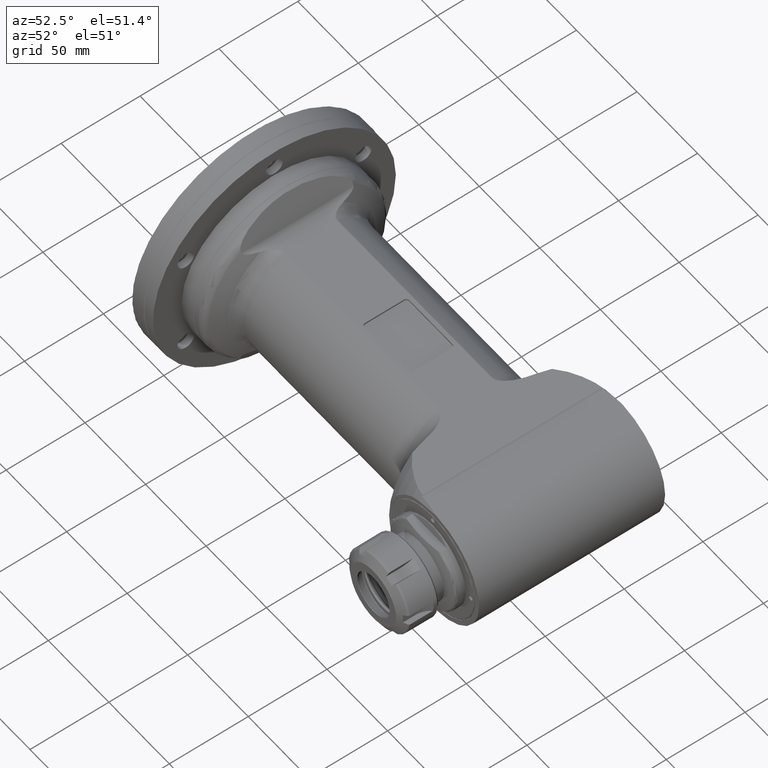
[diagram: clean part render]
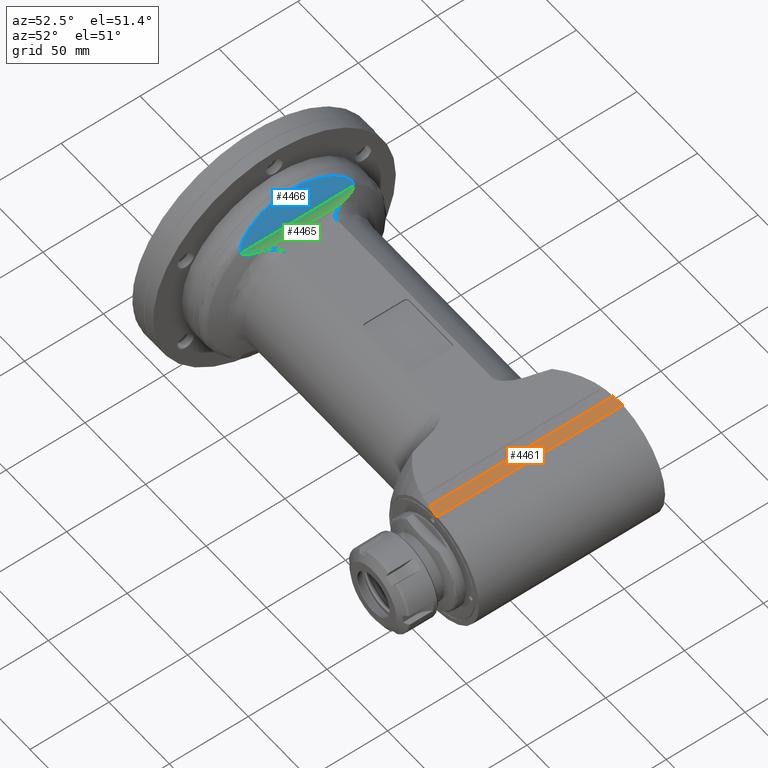
[diagram: same view with three faces highlighted in distinct colors, each labeled with its STEP entity id]
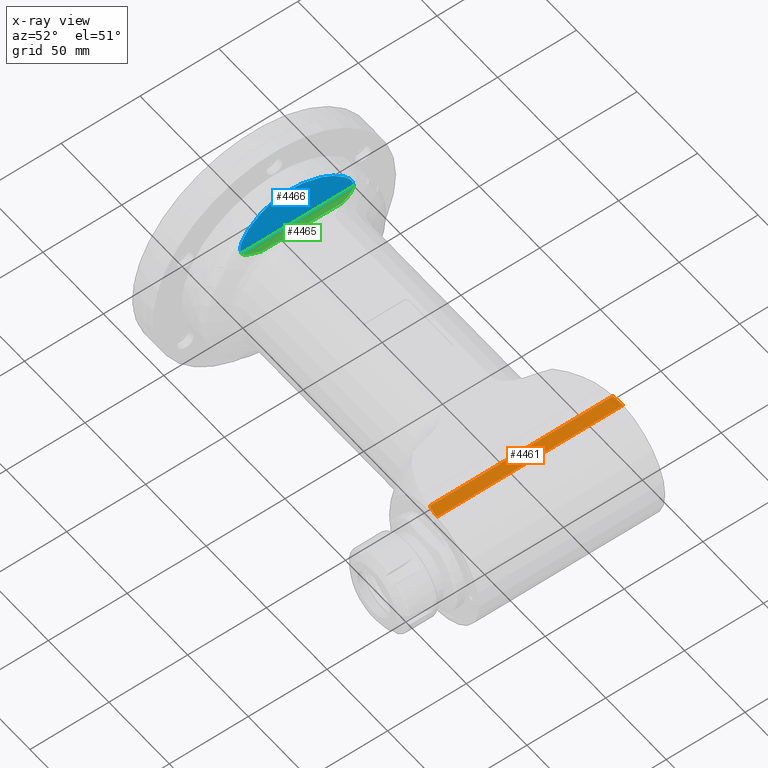
[diagram: x-ray of the same camera — body ghosted, the three highlighted faces saturated]
A machine part, auxiliary view with three faces highlighted in distinct colors.
The next image is the same camera in x-ray (body ghosted, the three faces saturated) — at least one of them is partly hidden behind the body in this view.
Their STEP definitions:

[orange] entity #4461 — the highlighted planar face has unit normal (-0.0872, 0, -0.9962).
#249=(
BOUNDED_CURVE()
B_SPLINE_CURVE(2,(#6775,#6776,#6777),.UNSPECIFIED.,.F.,.F.)
B_SPLINE_CURVE_WITH_KNOTS((3,3),(0.235865116005594,0.841052479975455),
 .UNSPECIFIED.)
CURVE()
GEOMETRIC_REPRESENTATION_ITEM()
RATIONAL_B_SPLINE_CURVE((1.,1.,1.))
REPRESENTATION_ITEM('')
);
#250=(
BOUNDED_CURVE()
B_SPLINE_CURVE(2,(#6784,#6785,#6786),.UNSPECIFIED.,.F.,.F.)
B_SPLINE_CURVE_WITH_KNOTS((3,3),(0.855208840996686,1.46039620495802),
 .UNSPECIFIED.)
CURVE()
GEOMETRIC_REPRESENTATION_ITEM()
RATIONAL_B_SPLINE_CURVE((1.,1.,1.))
REPRESENTATION_ITEM('')
);
#398=FACE_OUTER_BOUND('',#686,.T.);
#686=EDGE_LOOP('',(#2976,#2977,#2978,#2979,#2980,#2981));
#1319=LINE('',#6760,#1577);
#1320=LINE('',#6779,#1578);
#1321=LINE('',#6781,#1579);
#1322=LINE('',#6783,#1580);
#1577=VECTOR('',#5368,116.0592061434);
#1578=VECTOR('',#5371,10.);
#1579=VECTOR('',#5372,118.);
#1580=VECTOR('',#5373,10.);
#1839=VERTEX_POINT('',#6758);
#1840=VERTEX_POINT('',#6759);
#1841=VERTEX_POINT('',#6774);
#1842=VERTEX_POINT('',#6778);
#1843=VERTEX_POINT('',#6780);
#1844=VERTEX_POINT('',#6782);
#2291=EDGE_CURVE('',#1839,#1840,#1319,.T.);
#2294=EDGE_CURVE('',#1841,#1840,#249,.T.);
#2295=EDGE_CURVE('',#1842,#1841,#1320,.T.);
#2296=EDGE_CURVE('',#1843,#1842,#1321,.T.);
#2297=EDGE_CURVE('',#1844,#1843,#1322,.T.);
#2298=EDGE_CURVE('',#1839,#1844,#250,.T.);
#2976=ORIENTED_EDGE('',*,*,#2291,.T.);
#2977=ORIENTED_EDGE('',*,*,#2294,.F.);
#2978=ORIENTED_EDGE('',*,*,#2295,.F.);
#2979=ORIENTED_EDGE('',*,*,#2296,.F.);
#2980=ORIENTED_EDGE('',*,*,#2297,.F.);
#2981=ORIENTED_EDGE('',*,*,#2298,.F.);
#4330=PLANE('',#4791);
#4461=ADVANCED_FACE('',(#398),#4330,.F.);
#4791=AXIS2_PLACEMENT_3D('',#6773,#5369,#5370);
#5368=DIRECTION('',(-5.854472001257E-13,-1.,0.));
#5369=DIRECTION('center_axis',(-0.087155742747664,0.,-0.996194698091745));
#5370=DIRECTION('ref_axis',(-0.996194698091745,0.,0.087155742747664));
#5371=DIRECTION('',(-0.996194698091745,0.,0.0871557427476639));
#5372=DIRECTION('',(0.,-1.,0.));
#5373=DIRECTION('',(0.996194698091745,0.,-0.0871557427476639));
#6758=CARTESIAN_POINT('',(-3.555910320861,58.02960307171,38.5));
#6759=CARTESIAN_POINT('',(-3.555910320929,-58.02960307172,38.5));
#6760=CARTESIAN_POINT('',(-3.555910320861,58.02960307171,38.5));
#6773=CARTESIAN_POINT('Origin',(-9.270936472238,-59.,39.));
#6774=CARTESIAN_POINT('',(2.44584510330669,-59.0000000009241,37.9749144391303));
#6775=CARTESIAN_POINT('Ctrl Pts',(2.44584510316394,-59.0000000018369,37.9749144391429));
#6776=CARTESIAN_POINT('Ctrl Pts',(-0.579915565356645,-58.5148015367713,
38.239634196181));
#6777=CARTESIAN_POINT('Ctrl Pts',(-3.55591032092792,-58.0296030717059,38.5000000000061));
#6778=CARTESIAN_POINT('',(3.81191822441,-59.,37.85539852749));
#6779=CARTESIAN_POINT('',(-33.6506550533048,-59.,41.1329489957958));
#6780=CARTESIAN_POINT('',(3.81191822441,59.,37.85539852749));
#6781=CARTESIAN_POINT('',(3.81191822441,59.,37.85539852749));
#6782=CARTESIAN_POINT('',(2.44584510329297,59.0000000009242,37.9749144391316));
#6783=CARTESIAN_POINT('',(-74.3381319615015,59.,44.6926419727361));
#6784=CARTESIAN_POINT('Ctrl Pts',(-3.55591032086412,58.0296030717186,38.5000000000006));
#6785=CARTESIAN_POINT('Ctrl Pts',(-0.57991556533407,58.5148015367772,38.2396341961791));
#6786=CARTESIAN_POINT('Ctrl Pts',(2.44584510315022,59.000000001837,37.974914439144));

[blue] entity #4466 — the highlighted planar face has unit normal (-0.9397, 0, -0.342).
#359=B_SPLINE_CURVE_WITH_KNOTS('',3,(#6971,#6972,#6973,#6974,#6975,#6976,
#6977,#6978,#6979,#6980,#6981,#6982,#6983,#6984,#6985,#6986,#6987,#6988),
 .UNSPECIFIED.,.F.,.F.,(4,2,2,2,2,2,2,2,4),(1.83524515230335,1.94782364696368,
2.30536823861081,2.66291283025793,3.05831877706774,3.45372472387754,3.75401914312324,
3.89268274483142,3.90047097227725),.UNSPECIFIED.);
#360=B_SPLINE_CURVE_WITH_KNOTS('',3,(#6992,#6993,#6994,#6995,#6996,#6997,
#6998,#6999,#7000,#7001,#7002,#7003,#7004,#7005,#7006,#7007,#7008,#7009),
 .UNSPECIFIED.,.F.,.F.,(4,2,2,2,2,2,2,2,4),(10.9879278441443,10.9957160715902,
11.1343796732984,11.4346740925441,11.8300800393539,12.2254859861637,12.5830305778108,
12.9405751694579,13.0531536641182),.UNSPECIFIED.);
#403=FACE_OUTER_BOUND('',#692,.T.);
#692=EDGE_LOOP('',(#3024,#3025,#3026,#3027,#3028,#3029));
#1043=ELLIPSE('',#4804,62.7864885760796,59.);
#1068=CIRCLE('',#4803,103.132249013614);
#1069=CIRCLE('',#4805,103.132248953429);
#1330=LINE('',#6924,#1588);
#1588=VECTOR('',#5401,71.17507101838);
#1871=VERTEX_POINT('',#6922);
#1872=VERTEX_POINT('',#6923);
#1875=VERTEX_POINT('',#6968);
#1876=VERTEX_POINT('',#6970);
#1877=VERTEX_POINT('',#6989);
#1878=VERTEX_POINT('',#6991);
#2328=EDGE_CURVE('',#1871,#1872,#1330,.T.);
#2333=EDGE_CURVE('',#1871,#1875,#1068,.T.);
#2334=EDGE_CURVE('',#1876,#1875,#359,.T.);
#2335=EDGE_CURVE('',#1876,#1877,#1043,.T.);
#2336=EDGE_CURVE('',#1878,#1877,#360,.T.);
#2337=EDGE_CURVE('',#1878,#1872,#1069,.T.);
#3024=ORIENTED_EDGE('',*,*,#2328,.F.);
#3025=ORIENTED_EDGE('',*,*,#2333,.T.);
#3026=ORIENTED_EDGE('',*,*,#2334,.F.);
#3027=ORIENTED_EDGE('',*,*,#2335,.T.);
#3028=ORIENTED_EDGE('',*,*,#2336,.F.);
#3029=ORIENTED_EDGE('',*,*,#2337,.T.);
#4332=PLANE('',#4802);
#4466=ADVANCED_FACE('',(#403),#4332,.F.);
#4802=AXIS2_PLACEMENT_3D('',#6967,#5402,#5403);
#4803=AXIS2_PLACEMENT_3D('',#6969,#5404,#5405);
#4804=AXIS2_PLACEMENT_3D('',#6990,#5406,#5407);
#4805=AXIS2_PLACEMENT_3D('',#7010,#5408,#5409);
#5401=DIRECTION('',(1.717080837463E-14,-1.,-4.751921387398E-14));
#5402=DIRECTION('center_axis',(-0.939692620785897,0.,-0.342020143325699));
#5403=DIRECTION('ref_axis',(0.,1.,0.));
#5404=DIRECTION('center_axis',(0.939692620798117,1.44499664308184E-9,0.342020143292126));
#5405=DIRECTION('ref_axis',(0.00401260073821672,0.99993117697277,-0.0110245341473586));
#5406=DIRECTION('center_axis',(0.939692620785897,0.,0.342020143325699));
#5407=DIRECTION('ref_axis',(0.342020143325699,0.,-0.939692620785897));
#5408=DIRECTION('center_axis',(0.939692620783974,-1.44062297885424E-9,0.342020143330985));
#5409=DIRECTION('ref_axis',(0.0100879466532356,-0.999564922332435,-0.027716409848207));
#6922=CARTESIAN_POINT('',(-188.5272482822,35.58753550919,41.6319194267));
#6923=CARTESIAN_POINT('',(-188.5272482822,-35.58753550919,41.6319194267));
#6924=CARTESIAN_POINT('',(-188.5272482822,35.58753550919,41.6319194267));
#6967=CARTESIAN_POINT('Origin',(-187.5693079519,0.,39.));
#6968=CARTESIAN_POINT('',(-189.1538123689,35.62530817393,43.35339010656));
#6969=CARTESIAN_POINT('Origin',(-189.567640907826,-67.4998429660819,44.4903751088245));
#6970=CARTESIAN_POINT('',(-193.685351304,19.15588865251,55.80369100635));
#6971=CARTESIAN_POINT('Ctrl Pts',(-193.68535130402,19.1558886525135,55.8036910063528));
#6972=CARTESIAN_POINT('Ctrl Pts',(-193.64044549824,19.5153045203275,55.6803133189701));
#6973=CARTESIAN_POINT('Ctrl Pts',(-193.594493744902,19.8699111503599,55.5540619142909));
#6974=CARTESIAN_POINT('Ctrl Pts',(-193.398710276412,21.3286952802156,55.0161512555124));
#6975=CARTESIAN_POINT('Ctrl Pts',(-193.219926290946,22.5303004937655,54.5249462924839));
#6976=CARTESIAN_POINT('Ctrl Pts',(-192.823756779127,24.8771513669423,53.4364795044851));
#6977=CARTESIAN_POINT('Ctrl Pts',(-192.606164106202,26.0220980476712,52.8386485489852));
#6978=CARTESIAN_POINT('Ctrl Pts',(-192.154604481032,28.1566130198652,51.5979986752934));
#6979=CARTESIAN_POINT('Ctrl Pts',(-191.872983367648,29.348370158103,50.8242510254272));
#6980=CARTESIAN_POINT('Ctrl Pts',(-191.251910645058,31.587567143657,49.1178677442722));
#6981=CARTESIAN_POINT('Ctrl Pts',(-190.912529703587,32.6351745421485,48.1854262709895));
#6982=CARTESIAN_POINT('Ctrl Pts',(-190.309513546922,34.1415743870005,46.5286529969866));
#6983=CARTESIAN_POINT('Ctrl Pts',(-189.976625518735,34.8455033115687,45.6140506563339));
#6984=CARTESIAN_POINT('Ctrl Pts',(-189.519380846223,35.4401876032742,44.3577812434424));
#6985=CARTESIAN_POINT('Ctrl Pts',(-189.339064673932,35.6125011300581,43.8623666317113));
#6986=CARTESIAN_POINT('Ctrl Pts',(-189.172157963242,35.6253904289544,43.403794212935));
#6987=CARTESIAN_POINT('Ctrl Pts',(-189.163061303596,35.6256255433554,43.3788013459649));
#6988=CARTESIAN_POINT('Ctrl Pts',(-189.153812368844,35.6253081739962,43.3533901065795));
#6989=CARTESIAN_POINT('',(-193.685351304,-19.15588865251,55.80369100635));
#6990=CARTESIAN_POINT('Origin',(-173.374468815517,0.,0.));
#6991=CARTESIAN_POINT('',(-189.1538123689,-35.62530817393,43.35339010656));
#6992=CARTESIAN_POINT('Ctrl Pts',(-189.153812368844,-35.6253081739962,43.3533901065795));
#6993=CARTESIAN_POINT('Ctrl Pts',(-189.163061303596,-35.6256255433554,43.3788013459649));
#6994=CARTESIAN_POINT('Ctrl Pts',(-189.172157963242,-35.6253904289544,43.403794212935));
#6995=CARTESIAN_POINT('Ctrl Pts',(-189.339064673932,-35.6125011300581,43.8623666317113));
#6996=CARTESIAN_POINT('Ctrl Pts',(-189.519380846223,-35.4401876032742,44.3577812434424));
#6997=CARTESIAN_POINT('Ctrl Pts',(-189.976625518735,-34.8455033115687,45.6140506563339));
#6998=CARTESIAN_POINT('Ctrl Pts',(-190.309513546922,-34.1415743870005,46.5286529969866));
#6999=CARTESIAN_POINT('Ctrl Pts',(-190.912529703587,-32.6351745421485,48.1854262709895));
#7000=CARTESIAN_POINT('Ctrl Pts',(-191.251910645058,-31.587567143657,49.1178677442722));
#7001=CARTESIAN_POINT('Ctrl Pts',(-191.872983367648,-29.348370158103,50.8242510254272));
#7002=CARTESIAN_POINT('Ctrl Pts',(-192.154604481032,-28.1566130198652,51.5979986752934));
#7003=CARTESIAN_POINT('Ctrl Pts',(-192.606164106202,-26.0220980476712,52.8386485489852));
#7004=CARTESIAN_POINT('Ctrl Pts',(-192.823756779127,-24.8771513669423,53.4364795044851));
#7005=CARTESIAN_POINT('Ctrl Pts',(-193.219926290946,-22.5303004937655,54.5249462924839));
#7006=CARTESIAN_POINT('Ctrl Pts',(-193.398710276412,-21.3286952802156,55.0161512555124));
#7007=CARTESIAN_POINT('Ctrl Pts',(-193.594493744902,-19.8699111503599,55.5540619142909));
#7008=CARTESIAN_POINT('Ctrl Pts',(-193.64044549824,-19.5153045203275,55.6803133189701));
#7009=CARTESIAN_POINT('Ctrl Pts',(-193.68535130402,-19.1558886525135,55.8036910063528));
#7010=CARTESIAN_POINT('Origin',(-189.567640907871,67.4998429059132,44.4903751072603));

[green] entity #4465 — the highlighted cylindrical surface (edge-blend (fillet) strip) has radius 4 mm, axis along (0, -1, 0).
#45=CYLINDRICAL_SURFACE('',#4801,4.);
#355=B_SPLINE_CURVE_WITH_KNOTS('',3,(#6926,#6927,#6928,#6929,#6930,#6931,
#6932,#6933,#6934,#6935,#6936,#6937,#6938,#6939,#6940,#6941),
 .UNSPECIFIED.,.F.,.F.,(4,2,2,2,2,2,2,4),(9.62354896462584,9.68754036288442,
10.1425327277888,10.370028910241,10.4837770014671,10.5975250926932,10.6491508740843,
10.681904605808),.UNSPECIFIED.);
#356=B_SPLINE_CURVE_WITH_KNOTS('',3,(#6942,#6943,#6944,#6945),
 .UNSPECIFIED.,.F.,.F.,(4,4),(11.2193479841435,11.2658859111274),
 .UNSPECIFIED.);
#357=B_SPLINE_CURVE_WITH_KNOTS('',3,(#6947,#6948,#6949,#6950),
 .UNSPECIFIED.,.F.,.F.,(4,4),(-8.1819953388945,-8.129747146911),
 .UNSPECIFIED.);
#358=B_SPLINE_CURVE_WITH_KNOTS('',3,(#6951,#6952,#6953,#6954,#6955,#6956,
#6957,#6958,#6959,#6960,#6961,#6962,#6963,#6964,#6965,#6966),
 .UNSPECIFIED.,.F.,.F.,(4,2,2,2,2,2,2,4),(-4.58908145374912,-4.52508995631931,
-4.07009759141492,-3.84260140896272,-3.72885331773662,-3.61510522651053,
-3.56347944511939,-3.53072571339569),.UNSPECIFIED.);
#402=FACE_OUTER_BOUND('',#691,.T.);
#691=EDGE_LOOP('',(#3018,#3019,#3020,#3021,#3022,#3023));
#1323=LINE('',#6806,#1581);
#1330=LINE('',#6924,#1588);
#1581=VECTOR('',#5384,51.5068622198801);
#1588=VECTOR('',#5401,71.17507101838);
#1848=VERTEX_POINT('',#6804);
#1849=VERTEX_POINT('',#6805);
#1871=VERTEX_POINT('',#6922);
#1872=VERTEX_POINT('',#6923);
#1873=VERTEX_POINT('',#6925);
#1874=VERTEX_POINT('',#6946);
#2304=EDGE_CURVE('',#1848,#1849,#1323,.T.);
#2328=EDGE_CURVE('',#1871,#1872,#1330,.T.);
#2329=EDGE_CURVE('',#1873,#1872,#355,.T.);
#2330=EDGE_CURVE('',#1848,#1873,#356,.T.);
#2331=EDGE_CURVE('',#1849,#1874,#357,.T.);
#2332=EDGE_CURVE('',#1874,#1871,#358,.T.);
#3018=ORIENTED_EDGE('',*,*,#2328,.T.);
#3019=ORIENTED_EDGE('',*,*,#2329,.F.);
#3020=ORIENTED_EDGE('',*,*,#2330,.F.);
#3021=ORIENTED_EDGE('',*,*,#2304,.T.);
#3022=ORIENTED_EDGE('',*,*,#2331,.T.);
#3023=ORIENTED_EDGE('',*,*,#2332,.T.);
#4465=ADVANCED_FACE('',(#402),#45,.F.);
#4801=AXIS2_PLACEMENT_3D('',#6921,#5399,#5400);
#5384=DIRECTION('',(3.61784635637599E-8,0.999999999999997,6.08613096749898E-8));
#5399=DIRECTION('center_axis',(0.,-1.,0.));
#5400=DIRECTION('ref_axis',(-1.,0.,0.));
#5401=DIRECTION('',(1.717080837463E-14,-1.,-4.751921387398E-14));
#6804=CARTESIAN_POINT('',(-184.768478827196,-25.7534348058438,38.9999989614903));
#6805=CARTESIAN_POINT('',(-184.768475082894,25.7534188609493,39.0000000064153));
#6806=CARTESIAN_POINT('',(-184.7684765234,-25.75344204155,38.99999688447));
#6921=CARTESIAN_POINT('Origin',(-184.7684777991,0.,43.));
#6922=CARTESIAN_POINT('',(-188.5272482822,35.58753550919,41.6319194267));
#6923=CARTESIAN_POINT('',(-188.5272482822,-35.58753550919,41.6319194267));
#6924=CARTESIAN_POINT('',(-188.5272482822,35.58753550919,41.6319194267));
#6925=CARTESIAN_POINT('',(-184.959823853893,-26.4357340879267,39.0045792819483));
#6926=CARTESIAN_POINT('Ctrl Pts',(-184.959823855127,-26.4357340875539,39.0045792853765));
#6927=CARTESIAN_POINT('Ctrl Pts',(-185.015205013026,-26.6435080218233,39.0072315632964));
#6928=CARTESIAN_POINT('Ctrl Pts',(-185.071196146135,-26.8502186719279,39.0110665784283));
#6929=CARTESIAN_POINT('Ctrl Pts',(-185.530136037055,-28.5176639004221,39.0524589034384));
#6930=CARTESIAN_POINT('Ctrl Pts',(-186.009108162048,-30.0867874738775,39.154344250736));
#6931=CARTESIAN_POINT('Ctrl Pts',(-186.781304234601,-32.2656851178169,39.5314861840178));
#6932=CARTESIAN_POINT('Ctrl Pts',(-187.043921009771,-32.955338014839,39.6916608390199));
#6933=CARTESIAN_POINT('Ctrl Pts',(-187.449685810525,-33.9089227727784,40.026451260573));
#6934=CARTESIAN_POINT('Ctrl Pts',(-187.586205938079,-34.2117320341148,40.1531497748424));
#6935=CARTESIAN_POINT('Ctrl Pts',(-187.86898358004,-34.7811012080194,40.4640528789308));
#6936=CARTESIAN_POINT('Ctrl Pts',(-188.014283219425,-35.0512984562977,40.6424287991561));
#6937=CARTESIAN_POINT('Ctrl Pts',(-188.247249948034,-35.3775848937542,41.0207620959665));
#6938=CARTESIAN_POINT('Ctrl Pts',(-188.326473317409,-35.4716032053336,41.1640659153533));
#6939=CARTESIAN_POINT('Ctrl Pts',(-188.445258027646,-35.5635417460057,41.4209631110886));
#6940=CARTESIAN_POINT('Ctrl Pts',(-188.488859050469,-35.5842231247161,41.526445879248));
#6941=CARTESIAN_POINT('Ctrl Pts',(-188.52724828224,-35.5875355091461,41.6319194266869));
#6942=CARTESIAN_POINT('Ctrl Pts',(-184.768480067117,-25.7534351011821,39.0000000000006));
#6943=CARTESIAN_POINT('Ctrl Pts',(-184.83463479102,-25.9785783572795,39.0000000375107));
#6944=CARTESIAN_POINT('Ctrl Pts',(-184.898516178462,-26.2057255843653,39.001643178512));
#6945=CARTESIAN_POINT('Ctrl Pts',(-184.959823855984,-26.4357340908338,39.0045792854175));
#6946=CARTESIAN_POINT('',(-184.959823658228,26.4357331032463,39.0045794424257));
#6947=CARTESIAN_POINT('Ctrl Pts',(-184.76847530884,25.7534189074352,39.0000000000008));
#6948=CARTESIAN_POINT('Ctrl Pts',(-184.835235956867,25.9806238228642,38.9999999584379));
#6949=CARTESIAN_POINT('Ctrl Pts',(-184.899097298564,26.2079058216974,39.0016710141404));
#6950=CARTESIAN_POINT('Ctrl Pts',(-184.959823527286,26.4357328576545,39.0045792696757));
#6951=CARTESIAN_POINT('Ctrl Pts',(-184.959823597645,26.4357331215566,39.0045792730453));
#6952=CARTESIAN_POINT('Ctrl Pts',(-185.01520483948,26.6435073811207,39.0072315514078));
#6953=CARTESIAN_POINT('Ctrl Pts',(-185.071196058438,26.8502183533003,39.0110665705187));
#6954=CARTESIAN_POINT('Ctrl Pts',(-185.530136037055,28.5176639004221,39.0524589034384));
#6955=CARTESIAN_POINT('Ctrl Pts',(-186.009108162048,30.0867874738775,39.154344250736));
#6956=CARTESIAN_POINT('Ctrl Pts',(-186.781304234601,32.2656851178168,39.5314861840178));
#6957=CARTESIAN_POINT('Ctrl Pts',(-187.043921009771,32.955338014839,39.6916608390199));
#6958=CARTESIAN_POINT('Ctrl Pts',(-187.449685810525,33.9089227727783,40.026451260573));
#6959=CARTESIAN_POINT('Ctrl Pts',(-187.586205938079,34.2117320341148,40.1531497748424));
#6960=CARTESIAN_POINT('Ctrl Pts',(-187.86898358004,34.7811012080194,40.4640528789308));
#6961=CARTESIAN_POINT('Ctrl Pts',(-188.014283219425,35.0512984562977,40.6424287991561));
#6962=CARTESIAN_POINT('Ctrl Pts',(-188.247249948034,35.3775848937542,41.0207620959665));
#6963=CARTESIAN_POINT('Ctrl Pts',(-188.326473317409,35.4716032053335,41.1640659153534));
#6964=CARTESIAN_POINT('Ctrl Pts',(-188.445258027646,35.5635417460056,41.4209631110887));
#6965=CARTESIAN_POINT('Ctrl Pts',(-188.488859050469,35.5842231247161,41.526445879248));
#6966=CARTESIAN_POINT('Ctrl Pts',(-188.52724828224,35.5875355091461,41.6319194266869));